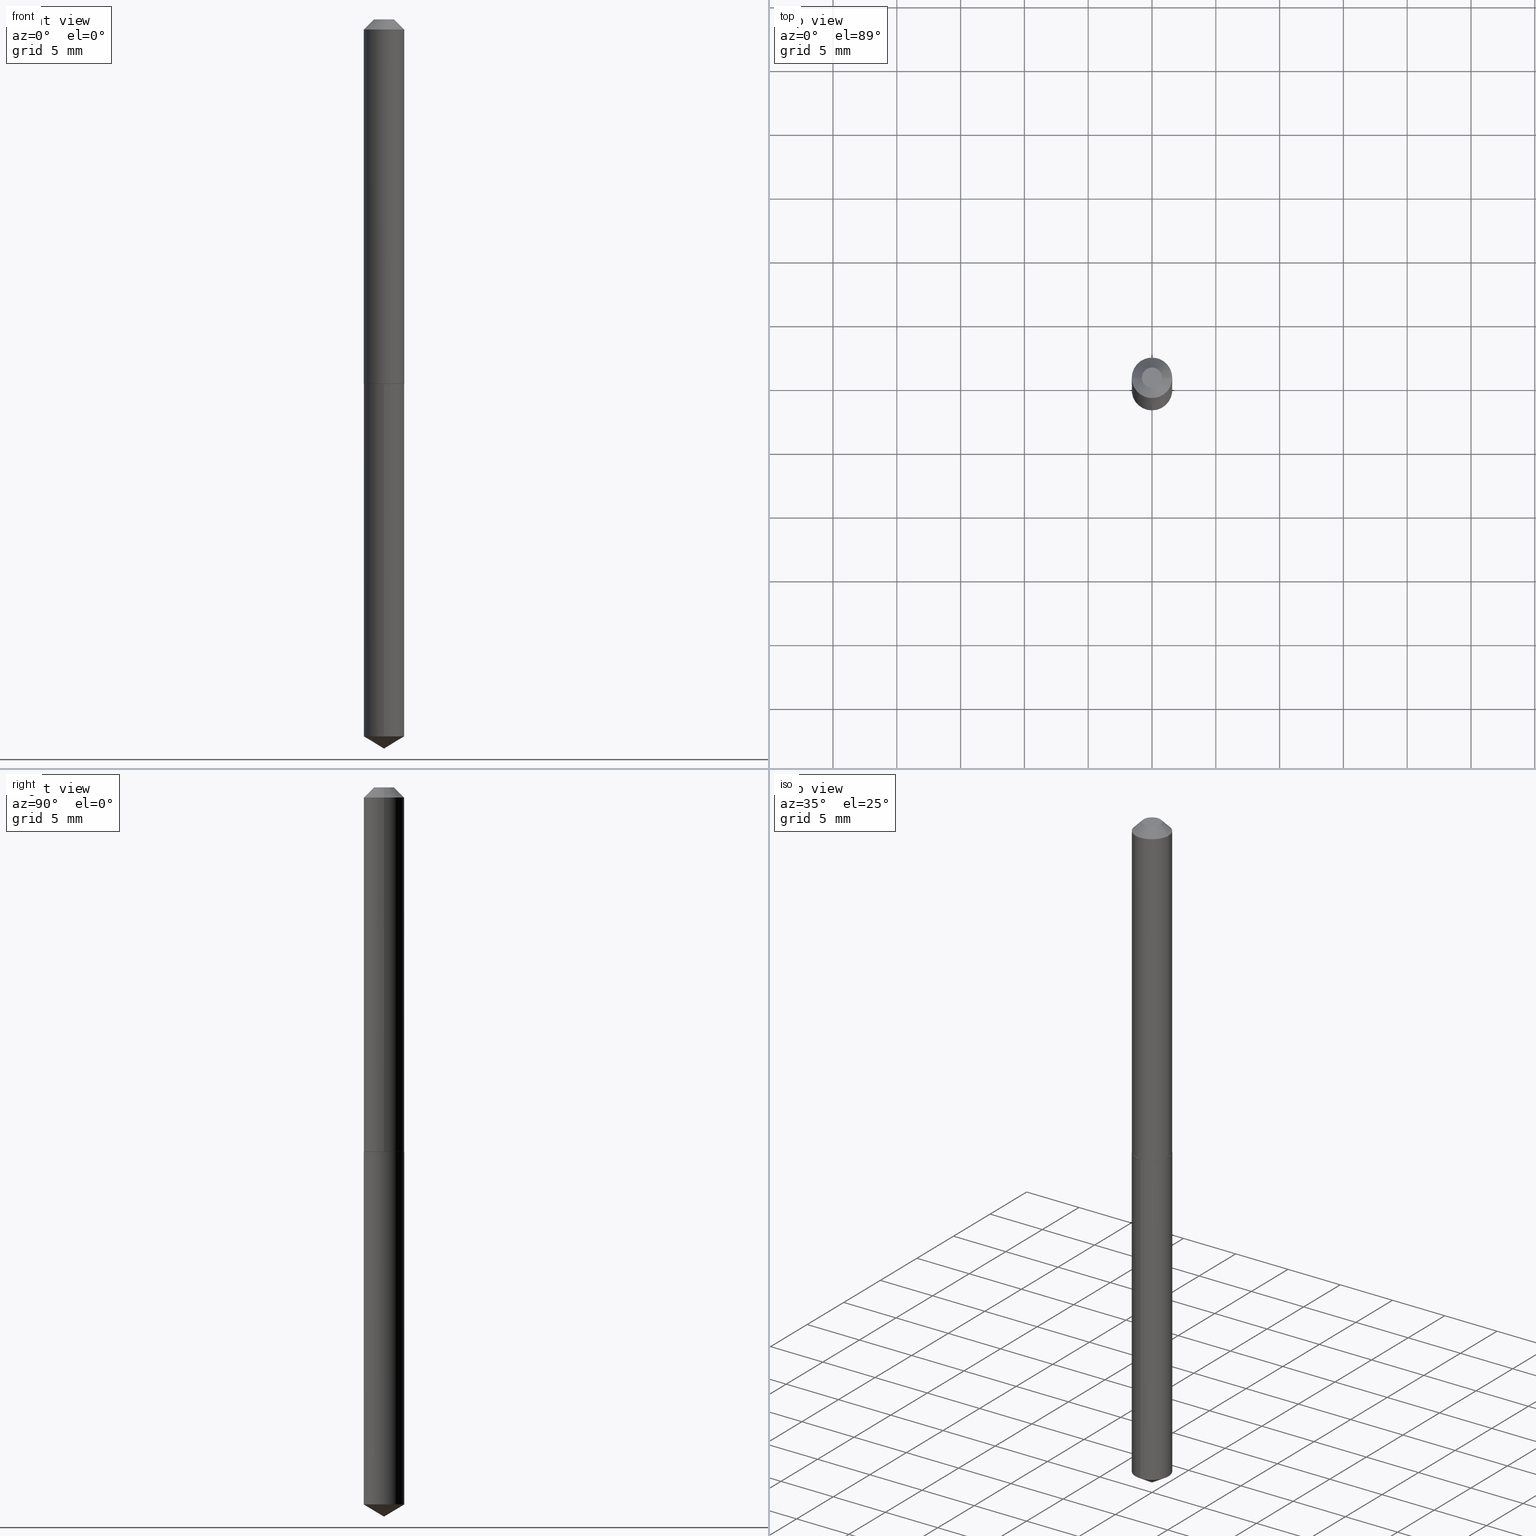
[diagram: canonical four-view strip — front | top / right | iso, engineering-drawing reading convention]
A machine part, canonical four-view strip (front | top / right | iso — engineering-drawing reading convention). The complete STEP part file that produces these views, byte-faithful:
ISO-10303-21;
HEADER;
FILE_DESCRIPTION (( 'STEP AP203' ),
    '1' );
FILE_NAME ('51108.STEP',
    '2024-04-22T18:27:46',
    ( '' ),
    ( '' ),
    'SwSTEP 2.0',
    'SolidWorks 2023',
    '' );
FILE_SCHEMA (( 'CONFIG_CONTROL_DESIGN' ));
ENDSEC;

DATA;
#1 = DIRECTION ( 'NONE',  ( -2.445468806185136877E-29, 3.491481338843145188E-15, 1.000000000000000000 ) ) ;
#2 = MECHANICAL_CONTEXT ( 'NONE', #15, 'mechanical' ) ;
#3 = PRODUCT_DEFINITION_SHAPE ( 'NONE', 'NONE',  #295 ) ;
#4 = LINE ( 'NONE', #240, #120 ) ;
#5 = VECTOR ( 'NONE', #277, 39.37007874015748143 ) ;
#6 = LOCAL_TIME ( 14, 27, 46.00000000000000000, #44 ) ;
#7 = CARTESIAN_POINT ( 'NONE',  ( 2.751152406958278671E-29, -3.927916506198539224E-15, -1.125000000000000000 ) ) ;
#8 = DIRECTION ( 'NONE',  ( 1.000000000000000000, -6.982962677686266711E-15, 4.876176775795935793E-29 ) ) ;
#9 = COORDINATED_UNIVERSAL_TIME_OFFSET ( 5, 0, .BEHIND. ) ;
#10 = APPROVAL ( #128, 'UNSPECIFIED' ) ;
#11 = DATE_AND_TIME ( #35, #6 ) ;
#12 = ORIENTED_EDGE ( 'NONE', *, *, #336, .F. ) ;
#13 = LINE ( 'NONE', #248, #225 ) ;
#14 = DATE_TIME_ROLE ( 'classification_date' ) ;
#15 = APPLICATION_CONTEXT ( 'configuration controlled 3d designs of mechanical parts and assemblies' ) ;
#16 = EDGE_CURVE ( 'NONE', #158, #224, #264, .T. ) ;
#17 = VERTEX_POINT ( 'NONE', #68 ) ;
#18 = CYLINDRICAL_SURFACE ( 'NONE', #307, 0.06250000000000000000 ) ;
#19 = CLOSED_SHELL ( 'NONE', ( #62, #53, #132, #270, #189 ) ) ;
#20 = ORIENTED_EDGE ( 'NONE', *, *, #167, .F. ) ;
#21 = CARTESIAN_POINT ( 'NONE',  ( 0.000000000000000000, 0.000000000000000000, 0.000000000000000000 ) ) ;
#22 = EDGE_LOOP ( 'NONE', ( #46, #194, #384, #170 ) ) ;
#23 = AXIS2_PLACEMENT_3D ( 'NONE', #383, #148, #207 ) ;
#24 = AXIS2_PLACEMENT_3D ( 'NONE', #325, #113, #212 ) ;
#25 = LINE ( 'NONE', #84, #205 ) ;
#26 = DATE_AND_TIME ( #174, #294 ) ;
#27 =( NAMED_UNIT ( * ) SI_UNIT ( $, .STERADIAN. ) SOLID_ANGLE_UNIT ( ) );
#28 = CARTESIAN_POINT ( 'NONE',  ( -0.06200000000000031875, -3.484730782853163939E-15, -1.124999999999999778 ) ) ;
#29 = DIRECTION ( 'NONE',  ( 1.000000000000000000, -6.982962677686266711E-15, 4.876176775795935793E-29 ) ) ;
#30 = DIRECTION ( 'NONE',  ( -2.438088387897960049E-29, 3.491481338843145188E-15, 1.000000000000000000 ) ) ;
#31 = CARTESIAN_POINT ( 'NONE',  ( 0.06200000000000031875, -4.360860192215089464E-15, -1.124999999999999778 ) ) ;
#32 = CIRCLE ( 'NONE', #323, 0.06250000000000000000 ) ;
#33 = DIRECTION ( 'NONE',  ( 2.438088387897960049E-29, -3.491481338843145188E-15, -1.000000000000000000 ) ) ;
#34 = CC_DESIGN_PERSON_AND_ORGANIZATION_ASSIGNMENT ( #234, #65, ( #295 ) ) ;
#35 = CALENDAR_DATE ( 2024, 22, 4 ) ;
#36 = ORIENTED_EDGE ( 'NONE', *, *, #204, .F. ) ;
#37 = FACE_OUTER_BOUND ( 'NONE', #370, .T. ) ;
#38 = CARTESIAN_POINT ( 'NONE',  ( 2.749929672555185870E-29, -3.926170765529116932E-15, -1.124500000000000055 ) ) ;
#39 = DIRECTION ( 'NONE',  ( -6.982962677686265922E-15, -1.000000000000000000, 4.370956789862821150E-15 ) ) ;
#40 = EDGE_CURVE ( 'NONE', #215, #185, #196, .T. ) ;
#41 = APPROVAL_ROLE ( '' ) ;
#42 = AXIS2_PLACEMENT_3D ( 'NONE', #241, #361, #89 ) ;
#43 = LOCAL_TIME ( 14, 27, 46.00000000000000000, #187 ) ;
#44 = COORDINATED_UNIVERSAL_TIME_OFFSET ( 5, 0, .BEHIND. ) ;
#45 = EDGE_LOOP ( 'NONE', ( #75, #252, #319, #262 ) ) ;
#46 = ORIENTED_EDGE ( 'NONE', *, *, #181, .T. ) ;
#47 = AXIS2_PLACEMENT_3D ( 'NONE', #184, #119, #180 ) ;
#48 = EDGE_LOOP ( 'NONE', ( #36, #49, #311, #331 ) ) ;
#49 = ORIENTED_EDGE ( 'NONE', *, *, #247, .T. ) ;
#50 = LINE ( 'NONE', #108, #172 ) ;
#51 = AXIS2_PLACEMENT_3D ( 'NONE', #278, #272, #118 ) ;
#52 = APPROVAL_ROLE ( '' ) ;
#53 = ADVANCED_FACE ( 'NONE', ( #142 ), #293, .T. ) ;
#54 = CARTESIAN_POINT ( 'NONE',  ( 4.440892098501165545E-16, 0.06249999999999227007, -2.212446211310777677 ) ) ;
#55 = CIRCLE ( 'NONE', #363, 0.06200000000000031875 ) ;
#56 = LOCAL_TIME ( 14, 27, 46.00000000000000000, #220 ) ;
#57 = PERSON_AND_ORGANIZATION ( #226, #210 ) ;
#58 = FACE_OUTER_BOUND ( 'NONE', #76, .T. ) ;
#59 = EDGE_CURVE ( 'NONE', #224, #215, #25, .T. ) ;
#60 = APPLICATION_PROTOCOL_DEFINITION ( 'international standard', 'config_control_design', 1994, #15 ) ;
#61 = CARTESIAN_POINT ( 'NONE',  ( -0.03125000000000000000, 2.727719795971192017E-16, 9.552245033332190007E-19 ) ) ;
#62 = ADVANCED_FACE ( 'NONE', ( #235 ), #249, .T. ) ;
#63 = CONICAL_SURFACE ( 'NONE', #47, 65.52281426576824686, 1.029744258676653201 ) ;
#64 = CARTESIAN_POINT ( 'NONE',  ( 2.751152406958278111E-29, -3.927916506198538435E-15, -1.124999999999999778 ) ) ;
#65 = PERSON_AND_ORGANIZATION_ROLE ( 'creator' ) ;
#66 = ORIENTED_EDGE ( 'NONE', *, *, #16, .F. ) ;
#67 = DIRECTION ( 'NONE',  ( 1.000000000000000000, -6.982962677686266711E-15, 0.000000000000000000 ) ) ;
#68 = CARTESIAN_POINT ( 'NONE',  ( 5.502367172120962397E-29, -7.855743711899160790E-15, -2.250000000000000000 ) ) ;
#69 = ORIENTED_EDGE ( 'NONE', *, *, #16, .T. ) ;
#70 = CARTESIAN_POINT ( 'NONE',  ( -1.167985862904637513E-47, 1.667574263899819915E-33, 4.776122516674677910E-19 ) ) ;
#71 = ADVANCED_FACE ( 'NONE', ( #332 ), #192, .T. ) ;
#72 = DATE_AND_TIME ( #308, #43 ) ;
#73 = DIRECTION ( 'NONE',  ( -2.445468806185136597E-29, 3.491481338843145583E-15, 1.000000000000000000 ) ) ;
#74 = AXIS2_PLACEMENT_3D ( 'NONE', #38, #279, #98 ) ;
#75 = ORIENTED_EDGE ( 'NONE', *, *, #247, .F. ) ;
#76 = EDGE_LOOP ( 'NONE', ( #66, #12 ) ) ;
#77 = ORIENTED_EDGE ( 'NONE', *, *, #296, .F. ) ;
#78 = CC_DESIGN_PERSON_AND_ORGANIZATION_ASSIGNMENT ( #315, #216, ( #186 ) ) ;
#79 = ORIENTED_EDGE ( 'NONE', *, *, #255, .F. ) ;
#80 = CARTESIAN_POINT ( 'NONE',  ( -0.06250000000000013878, -3.482081555679053527E-15, -1.124500000000000055 ) ) ;
#81 = EDGE_CURVE ( 'NONE', #100, #291, #32, .T. ) ;
#82 = DIRECTION ( 'NONE',  ( 1.000000000000000000, -6.982962677686265133E-15, 0.000000000000000000 ) ) ;
#83 = CONICAL_SURFACE ( 'NONE', #145, 0.06250000000000000000, 0.7853981633974450594 ) ;
#84 = CARTESIAN_POINT ( 'NONE',  ( -0.06250000000000013878, -3.482081555679053527E-15, -1.124500000000000055 ) ) ;
#85 = LENGTH_MEASURE_WITH_UNIT ( LENGTH_MEASURE( 0.02539999999999999897 ), #176 );
#86 = DIRECTION ( 'NONE',  ( -2.445496520942649923E-29, 3.491441649732960219E-15, 1.000000000000000000 ) ) ;
#87 = CARTESIAN_POINT ( 'NONE',  ( 7.642090019328601786E-31, -1.091087918388490144E-16, -0.03125000000000020123 ) ) ;
#88 = CARTESIAN_POINT ( 'NONE',  ( 2.749929672555185870E-29, -3.926170765529116932E-15, -1.124500000000000055 ) ) ;
#89 = DIRECTION ( 'NONE',  ( 1.000000000000000000, -6.982962677686262766E-15, 0.000000000000000000 ) ) ;
#90 = FACE_OUTER_BOUND ( 'NONE', #22, .T. ) ;
#91 = EDGE_LOOP ( 'NONE', ( #69, #129, #317, #285 ) ) ;
#92 = PERSON_AND_ORGANIZATION_ROLE ( 'design_supplier' ) ;
#93 = ORIENTED_EDGE ( 'NONE', *, *, #40, .T. ) ;
#94 = CARTESIAN_POINT ( 'NONE',  ( -4.364351673553640593E-16, -0.06250000000000392741, -1.124999999999999778 ) ) ;
#95 = CARTESIAN_POINT ( 'NONE',  ( 7.642090019328601786E-31, -1.091087918388490144E-16, -0.03125000000000020123 ) ) ;
#96 = DIRECTION ( 'NONE',  ( 1.000000000000000000, -6.982962677686265133E-15, 0.000000000000000000 ) ) ;
#97 = SHAPE_DEFINITION_REPRESENTATION ( #3, #141 ) ;
#98 = DIRECTION ( 'NONE',  ( 1.000000000000000000, -6.982962677686262766E-15, 0.000000000000000000 ) ) ;
#99 = CALENDAR_DATE ( 2024, 22, 4 ) ;
#100 = VERTEX_POINT ( 'NONE', #310 ) ;
#101 = APPROVAL ( #232, 'UNSPECIFIED' ) ;
#102 = ORIENTED_EDGE ( 'NONE', *, *, #385, .F. ) ;
#103 = CLOSED_SHELL ( 'NONE', ( #316, #173, #327, #237, #105, #71, #175, #239 ) ) ;
#104 = EDGE_LOOP ( 'NONE', ( #138, #380, #102 ) ) ;
#105 = ADVANCED_FACE ( 'NONE', ( #37 ), #153, .T. ) ;
#106 = AXIS2_PLACEMENT_3D ( 'NONE', #263, #236, #111 ) ;
#107 = APPROVAL_PERSON_ORGANIZATION ( #356, #101, #52 ) ;
#108 = CARTESIAN_POINT ( 'NONE',  ( 0.06250000000000013878, -4.362605932884509390E-15, -1.124500000000000055 ) ) ;
#109 = ORIENTED_EDGE ( 'NONE', *, *, #156, .F. ) ;
#110 = EDGE_CURVE ( 'NONE', #215, #100, #211, .T. ) ;
#111 = DIRECTION ( 'NONE',  ( 1.000000000000000000, -6.982962677686262766E-15, 0.000000000000000000 ) ) ;
#112 = DIRECTION ( 'NONE',  ( -6.982962677686265133E-15, -1.000000000000000000, 3.468864327941604075E-15 ) ) ;
#113 = DIRECTION ( 'NONE',  ( 0.000000000000000000, 0.000000000000000000, 1.000000000000000000 ) ) ;
#114 = AXIS2_PLACEMENT_3D ( 'NONE', #322, #238, #213 ) ;
#115 = CC_DESIGN_PERSON_AND_ORGANIZATION_ASSIGNMENT ( #155, #284, ( #161 ) ) ;
#116 = CARTESIAN_POINT ( 'NONE',  ( 5.410498333431049920E-29, -7.724671500213297613E-15, -2.212446211310777233 ) ) ;
#117 = CARTESIAN_POINT ( 'NONE',  ( 5.502304813916557343E-29, -7.855833012397078448E-15, -2.250000000000000000 ) ) ;
#118 = DIRECTION ( 'NONE',  ( -6.982962677686265922E-15, -1.000000000000000000, 4.370956789862821150E-15 ) ) ;
#119 = DIRECTION ( 'NONE',  ( -2.445496520942649923E-29, 3.491441649732960219E-15, 1.000000000000000000 ) ) ;
#120 = VECTOR ( 'NONE', #266, 39.37007874015748143 ) ;
#121 = AXIS2_PLACEMENT_3D ( 'NONE', #21, #302, #29 ) ;
#122 = VECTOR ( 'NONE', #357, 39.37007874015748143 ) ;
#123 = DIRECTION ( 'NONE',  ( 2.445496520942649643E-29, -3.491441649732960219E-15, -1.000000000000000000 ) ) ;
#124 = DATE_AND_TIME ( #130, #147 ) ;
#125 = VERTEX_POINT ( 'NONE', #61 ) ;
#126 = CIRCLE ( 'NONE', #334, 0.06250000000000000000 ) ;
#127 = ORIENTED_EDGE ( 'NONE', *, *, #167, .T. ) ;
#128 = APPROVAL_STATUS ( 'not_yet_approved' ) ;
#129 = ORIENTED_EDGE ( 'NONE', *, *, #59, .T. ) ;
#130 = CALENDAR_DATE ( 2024, 22, 4 ) ;
#131 = CARTESIAN_POINT ( 'NONE',  ( 0.06250000000000000000, -5.378899166995697247E-16, -0.03125000000000020123 ) ) ;
#132 = ADVANCED_FACE ( 'NONE', ( #168 ), #63, .T. ) ;
#133 = DIRECTION ( 'NONE',  ( -2.445496520942649923E-29, 3.491441649732960219E-15, 1.000000000000000000 ) ) ;
#134 = EDGE_CURVE ( 'NONE', #17, #159, #203, .T. ) ;
#135 = CARTESIAN_POINT ( 'NONE',  ( -0.06250000000000006939, 4.440892098500631092E-16, -3.074334431409319267E-30 ) ) ;
#136 = CIRCLE ( 'NONE', #233, 0.06250000000000000000 ) ;
#137 =( GEOMETRIC_REPRESENTATION_CONTEXT ( 3 ) GLOBAL_UNCERTAINTY_ASSIGNED_CONTEXT ( ( #367 ) ) GLOBAL_UNIT_ASSIGNED_CONTEXT ( ( #362, #387, #27 ) ) REPRESENTATION_CONTEXT ( 'NONE', 'WORKASPACE' ) );
#138 = ORIENTED_EDGE ( 'NONE', *, *, #134, .F. ) ;
#139 = DIRECTION ( 'NONE',  ( 6.982962677686265922E-15, 1.000000000000000000, -3.491441649732960219E-15 ) ) ;
#140 = EDGE_LOOP ( 'NONE', ( #368, #377, #20, #79 ) ) ;
#141 = ADVANCED_BREP_SHAPE_REPRESENTATION ( '51108', ( #297, #177, #24 ), #137 ) ;
#142 = FACE_OUTER_BOUND ( 'NONE', #104, .T. ) ;
#143 = APPROVAL_DATE_TIME ( #26, #101 ) ;
#144 = CC_DESIGN_PERSON_AND_ORGANIZATION_ASSIGNMENT ( #222, #92, ( #161 ) ) ;
#145 = AXIS2_PLACEMENT_3D ( 'NONE', #87, #230, #271 ) ;
#146 = CARTESIAN_POINT ( 'NONE',  ( 0.03125000000000000000, -3.761402395649650430E-16, 9.552245033370130827E-19 ) ) ;
#147 = LOCAL_TIME ( 14, 27, 46.00000000000000000, #9 ) ;
#148 = DIRECTION ( 'NONE',  ( -2.445468806185136597E-29, 3.491481338843145583E-15, 1.000000000000000000 ) ) ;
#149 = APPLICATION_PROTOCOL_DEFINITION ( 'international standard', 'config_control_design', 1994, #258 ) ;
#150 = FACE_OUTER_BOUND ( 'NONE', #200, .T. ) ;
#151 = DIRECTION ( 'NONE',  ( 1.000000000000000000, -6.982962677686266711E-15, 4.876242311950517246E-29 ) ) ;
#152 = CARTESIAN_POINT ( 'NONE',  ( 0.06250000000000013878, -4.362605932884509390E-15, -1.124500000000000055 ) ) ;
#153 = CONICAL_SURFACE ( 'NONE', #42, 0.06250000000000013878, 0.7853981633973630139 ) ;
#154 = DIRECTION ( 'NONE',  ( -2.445468806185136597E-29, 3.491481338843145583E-15, 1.000000000000000000 ) ) ;
#155 = PERSON_AND_ORGANIZATION ( #226, #210 ) ;
#156 = EDGE_CURVE ( 'NONE', #290, #199, #378, .T. ) ;
#157 = CARTESIAN_POINT ( 'NONE',  ( 0.000000000000000000, 0.000000000000000000, 0.000000000000000000 ) ) ;
#158 = VERTEX_POINT ( 'NONE', #31 ) ;
#159 = VERTEX_POINT ( 'NONE', #320 ) ;
#160 = FACE_OUTER_BOUND ( 'NONE', #48, .T. ) ;
#161 = PRODUCT_DEFINITION_FORMATION_WITH_SPECIFIED_SOURCE ( 'ANY', '', #330, .NOT_KNOWN. ) ;
#162 = SECURITY_CLASSIFICATION_LEVEL ( 'unclassified' ) ;
#163 = EDGE_CURVE ( 'NONE', #158, #185, #50, .T. ) ;
#164 = DIRECTION ( 'NONE',  ( -1.000000000000000000, 6.982962677686265922E-15, -4.876176775795935793E-29 ) ) ;
#165 = CONICAL_SURFACE ( 'NONE', #300, 0.06250000000000000000, 0.7853981633974450594 ) ;
#166 = AXIS2_PLACEMENT_3D ( 'NONE', #116, #86, #328 ) ;
#167 = EDGE_CURVE ( 'NONE', #199, #290, #208, .T. ) ;
#168 = FACE_OUTER_BOUND ( 'NONE', #188, .T. ) ;
#169 = CC_DESIGN_PERSON_AND_ORGANIZATION_ASSIGNMENT ( #57, #386, ( #330 ) ) ;
#170 = ORIENTED_EDGE ( 'NONE', *, *, #343, .F. ) ;
#171 = CYLINDRICAL_SURFACE ( 'NONE', #121, 0.06250000000000006939 ) ;
#172 = VECTOR ( 'NONE', #364, 39.37007874015748143 ) ;
#173 = ADVANCED_FACE ( 'NONE', ( #90 ), #171, .T. ) ;
#174 = CALENDAR_DATE ( 2024, 22, 4 ) ;
#175 = ADVANCED_FACE ( 'NONE', ( #292 ), #83, .T. ) ;
#176 =( LENGTH_UNIT ( ) NAMED_UNIT ( * ) SI_UNIT ( $, .METRE. ) );
#177 = MANIFOLD_SOLID_BREP ( 'Body-Move/Copy2[2]', #103 ) ;
#178 = DIRECTION ( 'NONE',  ( -2.445468806185136597E-29, 3.491481338843145583E-15, 1.000000000000000000 ) ) ;
#179 = CIRCLE ( 'NONE', #201, 0.06250000000000013878 ) ;
#180 = DIRECTION ( 'NONE',  ( -6.982962677686265133E-15, -1.000000000000000000, 3.468864327941604075E-15 ) ) ;
#181 = EDGE_CURVE ( 'NONE', #185, #215, #179, .T. ) ;
#182 = LINE ( 'NONE', #304, #122 ) ;
#183 = PLANE ( 'NONE',  #314 ) ;
#184 = CARTESIAN_POINT ( 'NONE',  ( -9.077705459527455178E-28, 1.296025443045038632E-13, 37.12007874015748143 ) ) ;
#185 = VERTEX_POINT ( 'NONE', #152 ) ;
#186 = SECURITY_CLASSIFICATION ( '', '', #162 ) ;
#187 = COORDINATED_UNIVERSAL_TIME_OFFSET ( 5, 0, .BEHIND. ) ;
#188 = EDGE_LOOP ( 'NONE', ( #349, #259, #77 ) ) ;
#189 = ADVANCED_FACE ( 'NONE', ( #274 ), #329, .F. ) ;
#190 = DATE_TIME_ROLE ( 'creation_date' ) ;
#191 = CARTESIAN_POINT ( 'NONE',  ( 0.06250000000000000000, -5.455439591942406714E-16, -0.03125000000000020123 ) ) ;
#192 = CYLINDRICAL_SURFACE ( 'NONE', #257, 0.06250000000000006939 ) ;
#193 = DATE_AND_TIME ( #99, #56 ) ;
#194 = ORIENTED_EDGE ( 'NONE', *, *, #110, .T. ) ;
#195 = DIRECTION ( 'NONE',  ( 1.000000000000000000, -6.982962677686266711E-15, 0.000000000000000000 ) ) ;
#196 = CIRCLE ( 'NONE', #74, 0.06250000000000013878 ) ;
#197 = VECTOR ( 'NONE', #265, 39.37007874015748143 ) ;
#198 = APPROVAL_DATE_TIME ( #72, #288 ) ;
#199 = VERTEX_POINT ( 'NONE', #94 ) ;
#200 = EDGE_LOOP ( 'NONE', ( #217, #276 ) ) ;
#201 = AXIS2_PLACEMENT_3D ( 'NONE', #88, #352, #369 ) ;
#202 = ORIENTED_EDGE ( 'NONE', *, *, #40, .F. ) ;
#203 = LINE ( 'NONE', #117, #382 ) ;
#204 = EDGE_CURVE ( 'NONE', #227, #125, #346, .T. ) ;
#205 = VECTOR ( 'NONE', #390, 39.37007874015748143 ) ;
#206 = COORDINATED_UNIVERSAL_TIME_OFFSET ( 5, 0, .BEHIND. ) ;
#207 = DIRECTION ( 'NONE',  ( 1.000000000000000000, -6.982962677686266711E-15, 4.876242311950517246E-29 ) ) ;
#208 = CIRCLE ( 'NONE', #318, 0.06250000000000000000 ) ;
#209 = CARTESIAN_POINT ( 'NONE',  ( 5.502367718928807446E-29, -7.855743711899160790E-15, -2.250000000000000000 ) ) ;
#210 = ORGANIZATION ( 'UNSPECIFIED', 'UNSPECIFIED', '' ) ;
#211 = LINE ( 'NONE', #135, #373 ) ;
#212 = DIRECTION ( 'NONE',  ( 1.000000000000000000, 0.000000000000000000, 0.000000000000000000 ) ) ;
#213 = DIRECTION ( 'NONE',  ( -6.982962677686265922E-15, -1.000000000000000000, 4.370956789862821150E-15 ) ) ;
#214 = ORIENTED_EDGE ( 'NONE', *, *, #81, .F. ) ;
#215 = VERTEX_POINT ( 'NONE', #80 ) ;
#216 = PERSON_AND_ORGANIZATION_ROLE ( 'classification_officer' ) ;
#217 = ORIENTED_EDGE ( 'NONE', *, *, #376, .T. ) ;
#218 = CC_DESIGN_APPROVAL ( #10, ( #186 ) ) ;
#219 = DIRECTION ( 'NONE',  ( -2.445468806185136597E-29, 3.491481338843145583E-15, 1.000000000000000000 ) ) ;
#220 = COORDINATED_UNIVERSAL_TIME_OFFSET ( 5, 0, .BEHIND. ) ;
#221 = CARTESIAN_POINT ( 'NONE',  ( 2.751152406958278671E-29, -3.927916506198539224E-15, -1.125000000000000000 ) ) ;
#222 = PERSON_AND_ORGANIZATION ( #226, #210 ) ;
#223 = DIRECTION ( 'NONE',  ( -1.000000000000000000, 6.982962677686266711E-15, 0.000000000000000000 ) ) ;
#224 = VERTEX_POINT ( 'NONE', #28 ) ;
#225 = VECTOR ( 'NONE', #253, 39.37007874015748143 ) ;
#226 = PERSON ( 'UNSPECIFIED', 'UNSPECIFIED', 'UNSPECIFIED', ('UNSPECIFIED'), ('UNSPECIFIED'), ('UNSPECIFIED') ) ;
#227 = VERTEX_POINT ( 'NONE', #146 ) ;
#228 = ORIENTED_EDGE ( 'NONE', *, *, #343, .T. ) ;
#229 = EDGE_CURVE ( 'NONE', #335, #290, #4, .T. ) ;
#230 = DIRECTION ( 'NONE',  ( 2.445468806185136597E-29, -3.491481338843145583E-15, -1.000000000000000000 ) ) ;
#231 = EDGE_CURVE ( 'NONE', #17, #335, #324, .T. ) ;
#232 = APPROVAL_STATUS ( 'not_yet_approved' ) ;
#233 = AXIS2_PLACEMENT_3D ( 'NONE', #312, #254, #39 ) ;
#234 = PERSON_AND_ORGANIZATION ( #226, #210 ) ;
#235 = FACE_OUTER_BOUND ( 'NONE', #140, .T. ) ;
#236 = DIRECTION ( 'NONE',  ( -2.445468806185136597E-29, 3.491481338843145583E-15, 1.000000000000000000 ) ) ;
#237 = ADVANCED_FACE ( 'NONE', ( #58 ), #183, .F. ) ;
#238 = DIRECTION ( 'NONE',  ( -2.445496520942649923E-29, 3.491441649732960219E-15, 1.000000000000000000 ) ) ;
#239 = ADVANCED_FACE ( 'NONE', ( #150 ), #338, .F. ) ;
#240 = CARTESIAN_POINT ( 'NONE',  ( 4.440892098500901277E-16, 0.06249999999999607259, -1.125000000000000222 ) ) ;
#241 = CARTESIAN_POINT ( 'NONE',  ( 2.749929672555185870E-29, -3.926170765529116932E-15, -1.124500000000000055 ) ) ;
#242 = AXIS2_PLACEMENT_3D ( 'NONE', #70, #33, #164 ) ;
#243 = DIRECTION ( 'NONE',  ( 1.000000000000000000, -6.982962677686265922E-15, 4.876176775795935793E-29 ) ) ;
#244 = APPROVAL_PERSON_ORGANIZATION ( #366, #288, #41 ) ;
#245 = EDGE_LOOP ( 'NONE', ( #127, #250 ) ) ;
#246 = DIRECTION ( 'NONE',  ( -5.985567269335938913E-15, -0.8571673007021097801, 0.5150380749100582634 ) ) ;
#247 = EDGE_CURVE ( 'NONE', #227, #291, #345, .T. ) ;
#248 = CARTESIAN_POINT ( 'NONE',  ( -4.364351673553640593E-16, -0.06250000000000392741, -1.124999999999999778 ) ) ;
#249 = CYLINDRICAL_SURFACE ( 'NONE', #51, 0.06250000000000000000 ) ;
#250 = ORIENTED_EDGE ( 'NONE', *, *, #156, .T. ) ;
#251 = AXIS2_PLACEMENT_3D ( 'NONE', #7, #123, #139 ) ;
#252 = ORIENTED_EDGE ( 'NONE', *, *, #376, .F. ) ;
#253 = DIRECTION ( 'NONE',  ( -2.445496520942649923E-29, 3.491441649732960219E-15, 1.000000000000000000 ) ) ;
#254 = DIRECTION ( 'NONE',  ( -2.445496520942649923E-29, 3.491441649732960219E-15, 1.000000000000000000 ) ) ;
#255 = EDGE_CURVE ( 'NONE', #159, #199, #13, .T. ) ;
#256 = ORIENTED_EDGE ( 'NONE', *, *, #163, .T. ) ;
#257 = AXIS2_PLACEMENT_3D ( 'NONE', #157, #365, #8 ) ;
#258 = APPLICATION_CONTEXT ( 'configuration controlled 3d designs of mechanical parts and assemblies' ) ;
#259 = ORIENTED_EDGE ( 'NONE', *, *, #134, .T. ) ;
#260 = FACE_OUTER_BOUND ( 'NONE', #91, .T. ) ;
#261 = VECTOR ( 'NONE', #326, 39.37007874015748143 ) ;
#262 = ORIENTED_EDGE ( 'NONE', *, *, #81, .T. ) ;
#263 = CARTESIAN_POINT ( 'NONE',  ( 2.749929672555185870E-29, -3.926170765529116932E-15, -1.124500000000000055 ) ) ;
#264 = CIRCLE ( 'NONE', #351, 0.06200000000000031875 ) ;
#265 = DIRECTION ( 'NONE',  ( -2.445468806185136877E-29, 3.491481338843145188E-15, 1.000000000000000000 ) ) ;
#266 = DIRECTION ( 'NONE',  ( -2.445496520942649923E-29, 3.491441649732960219E-15, 1.000000000000000000 ) ) ;
#267 = CARTESIAN_POINT ( 'NONE',  ( -9.077705459527455178E-28, 1.296025443045038632E-13, 37.12007874015748143 ) ) ;
#268 = CARTESIAN_POINT ( 'NONE',  ( -2.335971725809275026E-47, 3.335148527799639830E-33, 9.552245033349355820E-19 ) ) ;
#269 = LINE ( 'NONE', #298, #197 ) ;
#270 = ADVANCED_FACE ( 'NONE', ( #286 ), #18, .T. ) ;
#271 = DIRECTION ( 'NONE',  ( -1.000000000000000000, 6.982962677686266711E-15, 0.000000000000000000 ) ) ;
#272 = DIRECTION ( 'NONE',  ( -2.445496520942649923E-29, 3.491441649732960219E-15, 1.000000000000000000 ) ) ;
#273 = CC_DESIGN_APPROVAL ( #288, ( #161 ) ) ;
#274 = FACE_OUTER_BOUND ( 'NONE', #245, .T. ) ;
#275 = EDGE_LOOP ( 'NONE', ( #339, #93, #228, #214 ) ) ;
#276 = ORIENTED_EDGE ( 'NONE', *, *, #204, .T. ) ;
#277 = DIRECTION ( 'NONE',  ( 0.7071067811865452413, -7.319954787623248157E-15, -0.7071067811865497932 ) ) ;
#278 = CARTESIAN_POINT ( 'NONE',  ( 2.751152406958278671E-29, -3.927916506198539224E-15, -1.125000000000000000 ) ) ;
#279 = DIRECTION ( 'NONE',  ( -2.445468806185136597E-29, 3.491481338843145583E-15, 1.000000000000000000 ) ) ;
#280 = CARTESIAN_POINT ( 'NONE',  ( 7.642090019328601786E-31, -1.091087918388490144E-16, -0.03125000000000020123 ) ) ;
#281 = CONICAL_SURFACE ( 'NONE', #106, 0.06250000000000013878, 0.7853981633973630139 ) ;
#282 = CIRCLE ( 'NONE', #389, 0.03125000000000000000 ) ;
#283 = ORIENTED_EDGE ( 'NONE', *, *, #229, .F. ) ;
#284 = PERSON_AND_ORGANIZATION_ROLE ( 'creator' ) ;
#285 = ORIENTED_EDGE ( 'NONE', *, *, #163, .F. ) ;
#286 = FACE_OUTER_BOUND ( 'NONE', #287, .T. ) ;
#287 = EDGE_LOOP ( 'NONE', ( #283, #309, #374, #109 ) ) ;
#288 = APPROVAL ( #313, 'UNSPECIFIED' ) ;
#289 = CC_DESIGN_SECURITY_CLASSIFICATION ( #186, ( #161 ) ) ;
#290 = VERTEX_POINT ( 'NONE', #340 ) ;
#291 = VERTEX_POINT ( 'NONE', #191 ) ;
#292 = FACE_OUTER_BOUND ( 'NONE', #45, .T. ) ;
#293 = CONICAL_SURFACE ( 'NONE', #388, 65.52281426576824686, 1.029744258676653201 ) ;
#294 = LOCAL_TIME ( 14, 27, 46.00000000000000000, #206 ) ;
#295 = PRODUCT_DEFINITION ( 'UNKNOWN', '', #161, #379 ) ;
#296 = EDGE_CURVE ( 'NONE', #335, #159, #136, .T. ) ;
#297 = MANIFOLD_SOLID_BREP ( 'Body-Move/Copy2[1]', #19 ) ;
#298 = CARTESIAN_POINT ( 'NONE',  ( 0.06250000000000006939, -4.364351673553921624E-16, 3.047610484872463374E-30 ) ) ;
#299 = PRODUCT_RELATED_PRODUCT_CATEGORY ( 'detail', '', ( #330 ) ) ;
#300 = AXIS2_PLACEMENT_3D ( 'NONE', #280, #375, #223 ) ;
#301 = DIRECTION ( 'NONE',  ( -2.445468806185136597E-29, 3.491481338843145583E-15, 1.000000000000000000 ) ) ;
#302 = DIRECTION ( 'NONE',  ( -2.445468806185136597E-29, 3.491481338843145583E-15, 1.000000000000000000 ) ) ;
#303 = CARTESIAN_POINT ( 'NONE',  ( 4.481873508045239502E-29, -1.449425382914433608E-15, -1.124999999999999778 ) ) ;
#304 = CARTESIAN_POINT ( 'NONE',  ( -0.06250000000000000000, 3.273263755165426674E-16, -0.03125000000000020123 ) ) ;
#305 = DIRECTION ( 'NONE',  ( -2.445496520942649923E-29, 3.491441649732960219E-15, 1.000000000000000000 ) ) ;
#306 = ORIENTED_EDGE ( 'NONE', *, *, #336, .T. ) ;
#307 = AXIS2_PLACEMENT_3D ( 'NONE', #221, #133, #371 ) ;
#308 = CALENDAR_DATE ( 2024, 22, 4 ) ;
#309 = ORIENTED_EDGE ( 'NONE', *, *, #296, .T. ) ;
#310 = CARTESIAN_POINT ( 'NONE',  ( -0.06250000000000000000, -1.573550568833919217E-15, -0.03125000000000020123 ) ) ;
#311 = ORIENTED_EDGE ( 'NONE', *, *, #321, .T. ) ;
#312 = CARTESIAN_POINT ( 'NONE',  ( 5.410498333431049920E-29, -7.724671500213297613E-15, -2.212446211310777233 ) ) ;
#313 = APPROVAL_STATUS ( 'not_yet_approved' ) ;
#314 = AXIS2_PLACEMENT_3D ( 'NONE', #303, #30, #243 ) ;
#315 = PERSON_AND_ORGANIZATION ( #226, #210 ) ;
#316 = ADVANCED_FACE ( 'NONE', ( #160 ), #165, .T. ) ;
#317 = ORIENTED_EDGE ( 'NONE', *, *, #181, .F. ) ;
#318 = AXIS2_PLACEMENT_3D ( 'NONE', #359, #305, #358 ) ;
#319 = ORIENTED_EDGE ( 'NONE', *, *, #360, .T. ) ;
#320 = CARTESIAN_POINT ( 'NONE',  ( -4.364351673553374845E-16, -0.06250000000000771605, -2.212446211310777233 ) ) ;
#321 = EDGE_CURVE ( 'NONE', #291, #100, #126, .T. ) ;
#322 = CARTESIAN_POINT ( 'NONE',  ( 2.751152406958278671E-29, -3.927916506198539224E-15, -1.125000000000000000 ) ) ;
#323 = AXIS2_PLACEMENT_3D ( 'NONE', #95, #219, #67 ) ;
#324 = LINE ( 'NONE', #209, #261 ) ;
#325 = CARTESIAN_POINT ( 'NONE',  ( 0.000000000000000000, 0.000000000000000000, 0.000000000000000000 ) ) ;
#326 = DIRECTION ( 'NONE',  ( 6.090539988449775280E-15, 0.8571673007021134438, 0.5150380749100522682 ) ) ;
#327 = ADVANCED_FACE ( 'NONE', ( #260 ), #281, .T. ) ;
#328 = DIRECTION ( 'NONE',  ( -6.982962677686265922E-15, -1.000000000000000000, 4.370956789862821150E-15 ) ) ;
#329 = PLANE ( 'NONE',  #251 ) ;
#330 = PRODUCT ( '51108', '51108', '', ( #2 ) ) ;
#331 = ORIENTED_EDGE ( 'NONE', *, *, #360, .F. ) ;
#332 = FACE_OUTER_BOUND ( 'NONE', #275, .T. ) ;
#333 = PERSON_AND_ORGANIZATION ( #226, #210 ) ;
#334 = AXIS2_PLACEMENT_3D ( 'NONE', #342, #73, #195 ) ;
#335 = VERTEX_POINT ( 'NONE', #54 ) ;
#336 = EDGE_CURVE ( 'NONE', #224, #158, #55, .T. ) ;
#337 = CC_DESIGN_APPROVAL ( #101, ( #295 ) ) ;
#338 = PLANE ( 'NONE',  #242 ) ;
#339 = ORIENTED_EDGE ( 'NONE', *, *, #110, .F. ) ;
#340 = CARTESIAN_POINT ( 'NONE',  ( 4.440892098501169490E-16, 0.06249999999999607952, -1.125000000000000222 ) ) ;
#341 = APPROVAL_DATE_TIME ( #124, #10 ) ;
#342 = CARTESIAN_POINT ( 'NONE',  ( 7.642090019328601786E-31, -1.091087918388490144E-16, -0.03125000000000020123 ) ) ;
#343 = EDGE_CURVE ( 'NONE', #185, #291, #269, .T. ) ;
#344 = APPROVAL_ROLE ( '' ) ;
#345 = LINE ( 'NONE', #131, #5 ) ;
#346 = CIRCLE ( 'NONE', #23, 0.03125000000000000000 ) ;
#347 = CIRCLE ( 'NONE', #166, 0.06250000000000000000 ) ;
#348 = APPROVAL_PERSON_ORGANIZATION ( #333, #10, #344 ) ;
#349 = ORIENTED_EDGE ( 'NONE', *, *, #231, .F. ) ;
#350 = DIMENSIONAL_EXPONENTS ( 1.000000000000000000, 0.000000000000000000, 0.000000000000000000, 0.000000000000000000, 0.000000000000000000, 0.000000000000000000, 0.000000000000000000 ) ;
#351 = AXIS2_PLACEMENT_3D ( 'NONE', #64, #154, #96 ) ;
#352 = DIRECTION ( 'NONE',  ( -2.445468806185136597E-29, 3.491481338843145583E-15, 1.000000000000000000 ) ) ;
#353 = CARTESIAN_POINT ( 'NONE',  ( 2.751152406958278111E-29, -3.927916506198538435E-15, -1.124999999999999778 ) ) ;
#354 = DIRECTION ( 'NONE',  ( -2.445496520942649923E-29, 3.491441649732960219E-15, 1.000000000000000000 ) ) ;
#355 = CC_DESIGN_DATE_AND_TIME_ASSIGNMENT ( #193, #190, ( #295 ) ) ;
#356 = PERSON_AND_ORGANIZATION ( #226, #210 ) ;
#357 = DIRECTION ( 'NONE',  ( -0.7071067811865452413, 2.468850131082233000E-15, -0.7071067811865497932 ) ) ;
#358 = DIRECTION ( 'NONE',  ( -6.982962677686265922E-15, -1.000000000000000000, 4.370956789862821150E-15 ) ) ;
#359 = CARTESIAN_POINT ( 'NONE',  ( 2.751152406958278671E-29, -3.927916506198539224E-15, -1.125000000000000000 ) ) ;
#360 = EDGE_CURVE ( 'NONE', #125, #100, #182, .T. ) ;
#361 = DIRECTION ( 'NONE',  ( -2.445468806185136597E-29, 3.491481338843145583E-15, 1.000000000000000000 ) ) ;
#362 =( CONVERSION_BASED_UNIT ( 'INCH', #85 ) LENGTH_UNIT ( ) NAMED_UNIT ( #350 ) );
#363 = AXIS2_PLACEMENT_3D ( 'NONE', #353, #178, #82 ) ;
#364 = DIRECTION ( 'NONE',  ( 0.7071067811864871766, -2.468850131081624789E-15, 0.7071067811866078578 ) ) ;
#365 = DIRECTION ( 'NONE',  ( -2.445468806185136597E-29, 3.491481338843145583E-15, 1.000000000000000000 ) ) ;
#366 = PERSON_AND_ORGANIZATION ( #226, #210 ) ;
#367 = UNCERTAINTY_MEASURE_WITH_UNIT (LENGTH_MEASURE( 1.000000000000000082E-05 ), #362, 'distance_accuracy_value', 'NONE');
#368 = ORIENTED_EDGE ( 'NONE', *, *, #385, .T. ) ;
#369 = DIRECTION ( 'NONE',  ( 1.000000000000000000, -6.982962677686262766E-15, 0.000000000000000000 ) ) ;
#370 = EDGE_LOOP ( 'NONE', ( #381, #306, #256, #202 ) ) ;
#371 = DIRECTION ( 'NONE',  ( -6.982962677686265922E-15, -1.000000000000000000, 4.370956789862821150E-15 ) ) ;
#372 = CC_DESIGN_DATE_AND_TIME_ASSIGNMENT ( #11, #14, ( #186 ) ) ;
#373 = VECTOR ( 'NONE', #1, 39.37007874015748143 ) ;
#374 = ORIENTED_EDGE ( 'NONE', *, *, #255, .T. ) ;
#375 = DIRECTION ( 'NONE',  ( 2.445468806185136597E-29, -3.491481338843145583E-15, -1.000000000000000000 ) ) ;
#376 = EDGE_CURVE ( 'NONE', #125, #227, #282, .T. ) ;
#377 = ORIENTED_EDGE ( 'NONE', *, *, #229, .T. ) ;
#378 = CIRCLE ( 'NONE', #114, 0.06250000000000000000 ) ;
#379 = DESIGN_CONTEXT ( 'detailed design', #258, 'design' ) ;
#380 = ORIENTED_EDGE ( 'NONE', *, *, #231, .T. ) ;
#381 = ORIENTED_EDGE ( 'NONE', *, *, #59, .F. ) ;
#382 = VECTOR ( 'NONE', #246, 39.37007874015748143 ) ;
#383 = CARTESIAN_POINT ( 'NONE',  ( -2.335971725809275026E-47, 3.335148527799639830E-33, 9.552245033349355820E-19 ) ) ;
#384 = ORIENTED_EDGE ( 'NONE', *, *, #321, .F. ) ;
#385 = EDGE_CURVE ( 'NONE', #159, #335, #347, .T. ) ;
#386 = PERSON_AND_ORGANIZATION_ROLE ( 'design_owner' ) ;
#387 =( NAMED_UNIT ( * ) PLANE_ANGLE_UNIT ( ) SI_UNIT ( $, .RADIAN. ) );
#388 = AXIS2_PLACEMENT_3D ( 'NONE', #267, #354, #112 ) ;
#389 = AXIS2_PLACEMENT_3D ( 'NONE', #268, #301, #151 ) ;
#390 = DIRECTION ( 'NONE',  ( -0.7071067811864871766, 7.493145998870136435E-15, 0.7071067811866078578 ) ) ;
ENDSEC;
END-ISO-10303-21;
